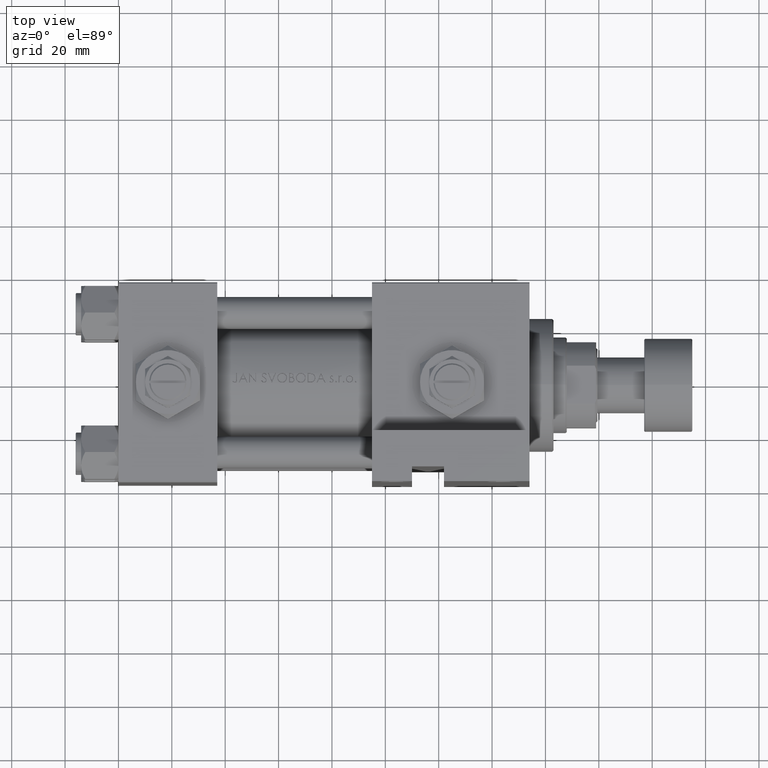
[diagram: clean part render]
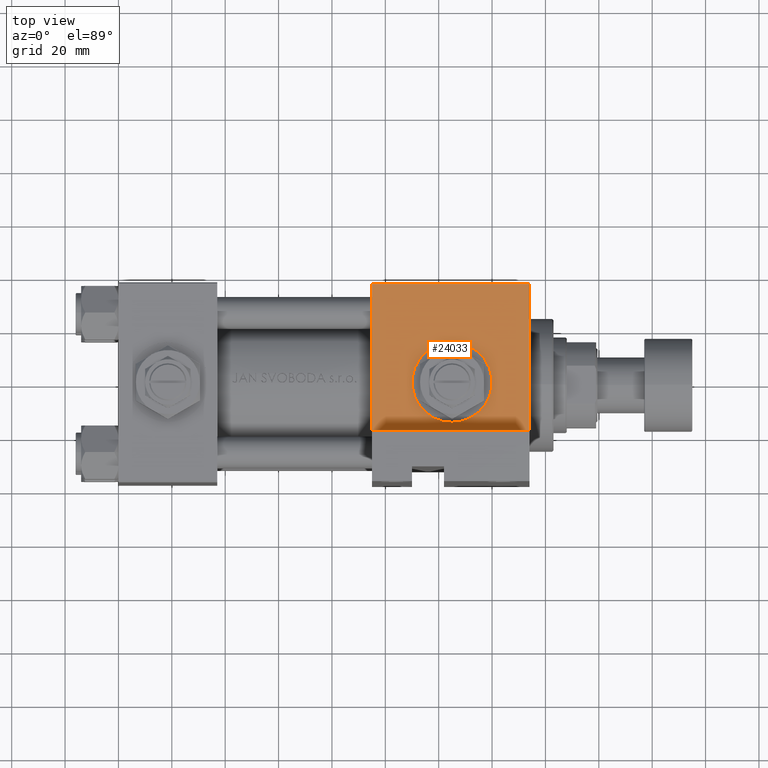
[diagram: same view with one face highlighted and labeled with its STEP entity id]
A machine part, top view. The second image highlights one B-rep face of the part: STEP entity #24033.
In plain terms, the highlighted planar face has unit normal (0, -0, -1).
Its self-contained STEP definition (entity closure, byte-faithful):
#1104 = ORIENTED_EDGE ( 'NONE', *, *, #10330, .T. ) ;
#2727 = CARTESIAN_POINT ( 'NONE',  ( 154.0000000000000000, -37.50000000000000000, 36.99999999999997868 ) ) ;
#4826 = EDGE_CURVE ( 'NONE', #36788, #35702, #44030, .T. ) ;
#7743 = DIRECTION ( 'NONE',  ( -1.000000000000000000, 0.000000000000000000, 0.000000000000000000 ) ) ;
#8319 = VECTOR ( 'NONE', #44542, 1000.000000000000000 ) ;
#9102 = CARTESIAN_POINT ( 'NONE',  ( 95.00000000000000000, -37.50000000000000000, 37.49999999999997868 ) ) ;
#9115 = ORIENTED_EDGE ( 'NONE', *, *, #46271, .T. ) ;
#9313 = CARTESIAN_POINT ( 'NONE',  ( 154.0000000000000000, -37.50000000000000000, 37.49999999999997868 ) ) ;
#9443 = ORIENTED_EDGE ( 'NONE', *, *, #49734, .F. ) ;
#9841 = PLANE ( 'NONE',  #32736 ) ;
#10330 = EDGE_CURVE ( 'NONE', #27964, #35702, #47221, .T. ) ;
#10835 = CARTESIAN_POINT ( 'NONE',  ( 154.0000000000000000, -37.50000000000000711, -18.50000000000000355 ) ) ;
#11445 = VERTEX_POINT ( 'NONE', #39050 ) ;
#11683 = VECTOR ( 'NONE', #7743, 1000.000000000000000 ) ;
#13384 = CARTESIAN_POINT ( 'NONE',  ( 154.0000000000000000, -37.50000000000000000, 37.49999999999997868 ) ) ;
#13625 = DIRECTION ( 'NONE',  ( 0.000000000000000000, 9.251858538542972814E-17, 1.000000000000000000 ) ) ;
#15238 = ORIENTED_EDGE ( 'NONE', *, *, #4826, .F. ) ;
#15523 = DIRECTION ( 'NONE',  ( 0.000000000000000000, -1.000000000000000000, -8.673617379884036705E-17 ) ) ;
#15555 = CARTESIAN_POINT ( 'NONE',  ( 154.0000000000000000, -37.50000000000000000, 36.99999999999997868 ) ) ;
#16665 = CARTESIAN_POINT ( 'NONE',  ( 95.00000000000000000, -37.50000000000000000, -18.50000000000000000 ) ) ;
#18103 = EDGE_CURVE ( 'NONE', #40895, #39773, #49625, .T. ) ;
#20999 = EDGE_LOOP ( 'NONE', ( #45940, #9443 ) ) ;
#22329 = AXIS2_PLACEMENT_3D ( 'NONE', #28507, #43478, #32334 ) ;
#22849 = ORIENTED_EDGE ( 'NONE', *, *, #37550, .T. ) ;
#22867 = CARTESIAN_POINT ( 'NONE',  ( 125.0000000000000000, -37.50000000000000000, -15.00000000000002132 ) ) ;
#24033 = ADVANCED_FACE ( 'NONE', ( #32680, #48880 ), #9841, .F. ) ;
#26242 = LINE ( 'NONE', #15555, #11683 ) ;
#27026 = VECTOR ( 'NONE', #47474, 1000.000000000000000 ) ;
#27964 = VERTEX_POINT ( 'NONE', #16665 ) ;
#28201 = CARTESIAN_POINT ( 'NONE',  ( 95.00000000000000000, -37.50000000000000000, -18.50000000000000000 ) ) ;
#28507 = CARTESIAN_POINT ( 'NONE',  ( 125.0000000000000000, -37.50000000000000000, 3.469446951953615767E-15 ) ) ;
#30400 = CIRCLE ( 'NONE', #22329, 15.00000000000002487 ) ;
#30763 = CARTESIAN_POINT ( 'NONE',  ( 125.0000000000000000, -37.50000000000000000, 3.469446951953615767E-15 ) ) ;
#31010 = DIRECTION ( 'NONE',  ( 0.000000000000000000, 0.000000000000000000, -1.000000000000000000 ) ) ;
#31173 = LINE ( 'NONE', #9102, #41901 ) ;
#32334 = DIRECTION ( 'NONE',  ( 0.000000000000000000, 0.000000000000000000, -1.000000000000000000 ) ) ;
#32680 = FACE_BOUND ( 'NONE', #20999, .T. ) ;
#32736 = AXIS2_PLACEMENT_3D ( 'NONE', #13384, #36228, #13625 ) ;
#35702 = VERTEX_POINT ( 'NONE', #10835 ) ;
#36228 = DIRECTION ( 'NONE',  ( 0.000000000000000000, 1.000000000000000000, -9.251858538542972814E-17 ) ) ;
#36788 = VERTEX_POINT ( 'NONE', #2727 ) ;
#37550 = EDGE_CURVE ( 'NONE', #11445, #27964, #31173, .T. ) ;
#39050 = CARTESIAN_POINT ( 'NONE',  ( 95.00000000000000000, -37.50000000000000000, 36.99999999999997868 ) ) ;
#39768 = DIRECTION ( 'NONE',  ( 0.000000000000000000, -9.251858538542972814E-17, -1.000000000000000000 ) ) ;
#39773 = VERTEX_POINT ( 'NONE', #48574 ) ;
#40285 = EDGE_LOOP ( 'NONE', ( #15238, #9115, #22849, #1104 ) ) ;
#40895 = VERTEX_POINT ( 'NONE', #22867 ) ;
#41901 = VECTOR ( 'NONE', #39768, 1000.000000000000000 ) ;
#43478 = DIRECTION ( 'NONE',  ( 0.000000000000000000, -1.000000000000000000, -8.673617379884036705E-17 ) ) ;
#44030 = LINE ( 'NONE', #9313, #8319 ) ;
#44542 = DIRECTION ( 'NONE',  ( 0.000000000000000000, -9.251858538542972814E-17, -1.000000000000000000 ) ) ;
#45556 = AXIS2_PLACEMENT_3D ( 'NONE', #30763, #15523, #31010 ) ;
#45940 = ORIENTED_EDGE ( 'NONE', *, *, #18103, .F. ) ;
#46271 = EDGE_CURVE ( 'NONE', #36788, #11445, #26242, .T. ) ;
#47221 = LINE ( 'NONE', #28201, #27026 ) ;
#47474 = DIRECTION ( 'NONE',  ( 1.000000000000000000, -3.528251137579948571E-16, 0.000000000000000000 ) ) ;
#48574 = CARTESIAN_POINT ( 'NONE',  ( 125.0000000000000000, -37.50000000000000000, 15.00000000000002842 ) ) ;
#48880 = FACE_OUTER_BOUND ( 'NONE', #40285, .T. ) ;
#49625 = CIRCLE ( 'NONE', #45556, 15.00000000000002487 ) ;
#49734 = EDGE_CURVE ( 'NONE', #39773, #40895, #30400, .T. ) ;